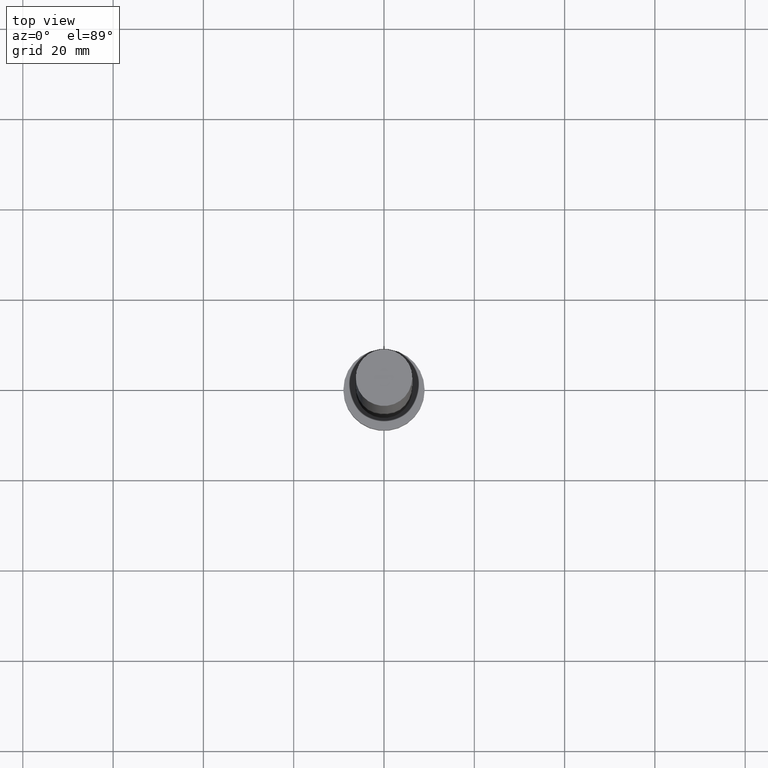
[diagram: clean part render]
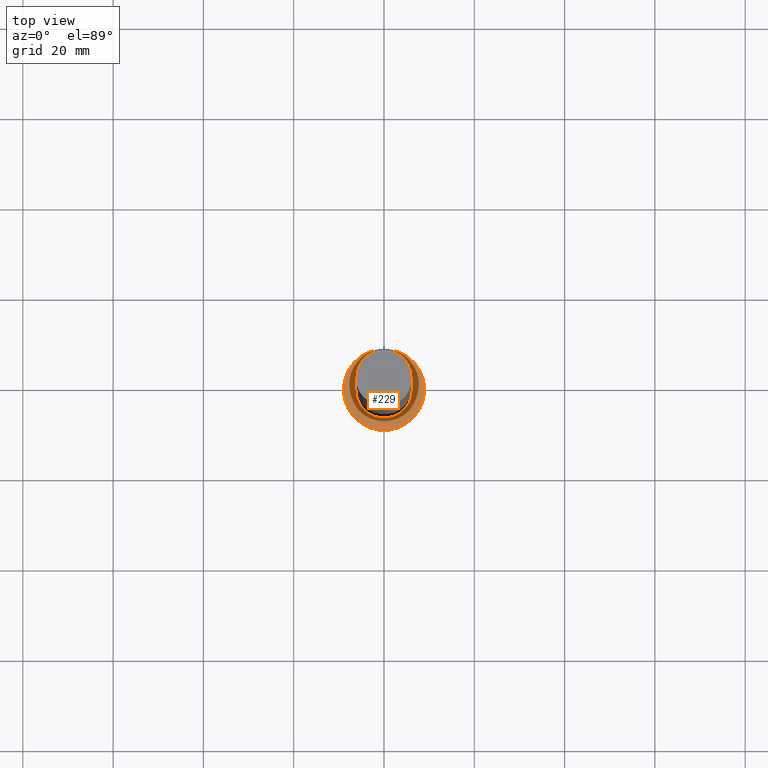
[diagram: same view with one face highlighted and labeled with its STEP entity id]
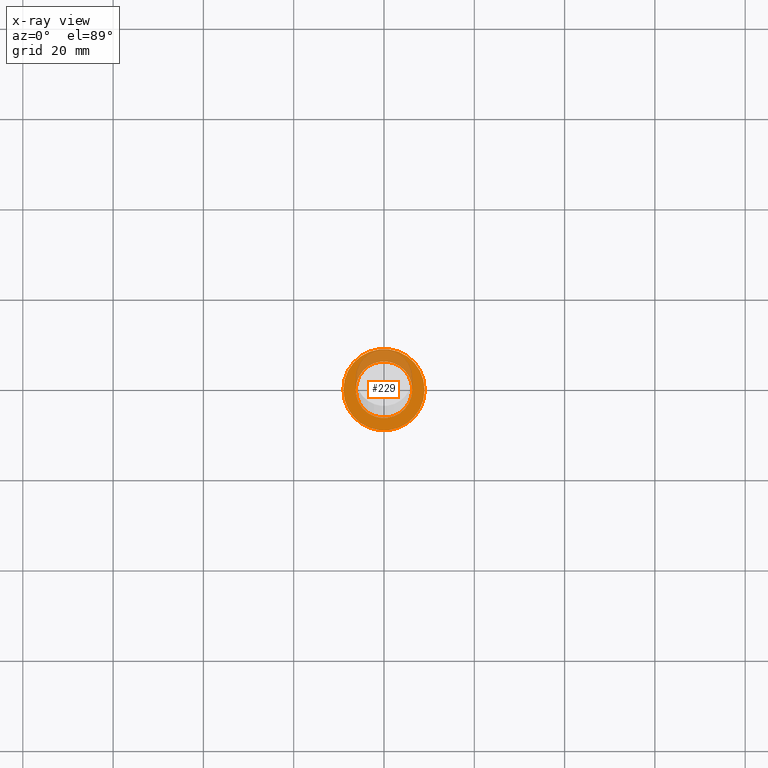
[diagram: x-ray of the same camera — body ghosted, the highlighted face saturated]
A machine part, top view. The second image highlights one B-rep face of the part: STEP entity #229.
The next image is the same camera in x-ray: the body ghosted, the highlighted face saturated — about 26% of this face is hidden behind the body in this view.
In plain terms, the highlighted planar face has unit normal (0, 0, 1).
Its self-contained STEP definition (entity closure, byte-faithful):
#2 = CARTESIAN_POINT ( 'NONE',  ( 0.000000000000000000, 0.000000000000000000, 7.000000000000000000 ) ) ;
#17 = DIRECTION ( 'NONE',  ( 1.000000000000000000, 0.000000000000000000, 0.000000000000000000 ) ) ;
#19 = CARTESIAN_POINT ( 'NONE',  ( 0.000000000000000000, 0.000000000000000000, 7.000000000000000000 ) ) ;
#27 = CIRCLE ( 'NONE', #173, 6.250000000000000000 ) ;
#28 = PLANE ( 'NONE',  #196 ) ;
#31 = CARTESIAN_POINT ( 'NONE',  ( 0.000000000000000000, 0.000000000000000000, 7.000000000000000000 ) ) ;
#48 = DIRECTION ( 'NONE',  ( 0.000000000000000000, 0.000000000000000000, 1.000000000000000000 ) ) ;
#52 = EDGE_CURVE ( 'NONE', #121, #125, #112, .T. ) ;
#58 = DIRECTION ( 'NONE',  ( 1.000000000000000000, 0.000000000000000000, -0.000000000000000000 ) ) ;
#64 = ORIENTED_EDGE ( 'NONE', *, *, #182, .F. ) ;
#67 = ORIENTED_EDGE ( 'NONE', *, *, #79, .F. ) ;
#70 = DIRECTION ( 'NONE',  ( 0.000000000000000000, 0.000000000000000000, 1.000000000000000000 ) ) ;
#72 = DIRECTION ( 'NONE',  ( 1.000000000000000000, 0.000000000000000000, 0.000000000000000000 ) ) ;
#74 = VERTEX_POINT ( 'NONE', #189 ) ;
#79 = EDGE_CURVE ( 'NONE', #74, #195, #223, .T. ) ;
#94 = CARTESIAN_POINT ( 'NONE',  ( -6.250000000000000000, 0.000000000000000000, 7.000000000000000000 ) ) ;
#96 = DIRECTION ( 'NONE',  ( 1.000000000000000000, 0.000000000000000000, 0.000000000000000000 ) ) ;
#98 = DIRECTION ( 'NONE',  ( 0.000000000000000000, 0.000000000000000000, 1.000000000000000000 ) ) ;
#102 = ORIENTED_EDGE ( 'NONE', *, *, #158, .T. ) ;
#107 = EDGE_LOOP ( 'NONE', ( #102, #241 ) ) ;
#109 = CARTESIAN_POINT ( 'NONE',  ( 0.000000000000000000, 0.000000000000000000, 7.000000000000000000 ) ) ;
#111 = DIRECTION ( 'NONE',  ( 0.000000000000000000, 0.000000000000000000, 1.000000000000000000 ) ) ;
#112 = CIRCLE ( 'NONE', #232, 9.000000000000000000 ) ;
#117 = CARTESIAN_POINT ( 'NONE',  ( -9.000000000000000000, 0.000000000000000000, 7.000000000000000000 ) ) ;
#121 = VERTEX_POINT ( 'NONE', #231 ) ;
#125 = VERTEX_POINT ( 'NONE', #117 ) ;
#146 = AXIS2_PLACEMENT_3D ( 'NONE', #2, #98, #72 ) ;
#149 = CIRCLE ( 'NONE', #146, 9.000000000000000000 ) ;
#158 = EDGE_CURVE ( 'NONE', #125, #121, #149, .T. ) ;
#168 = CARTESIAN_POINT ( 'NONE',  ( 0.000000000000000000, 0.000000000000000000, 7.000000000000000000 ) ) ;
#173 = AXIS2_PLACEMENT_3D ( 'NONE', #19, #48, #213 ) ;
#182 = EDGE_CURVE ( 'NONE', #195, #74, #27, .T. ) ;
#185 = EDGE_LOOP ( 'NONE', ( #64, #67 ) ) ;
#189 = CARTESIAN_POINT ( 'NONE',  ( 6.250000000000000000, 7.654042494670957606E-16, 7.000000000000000000 ) ) ;
#195 = VERTEX_POINT ( 'NONE', #94 ) ;
#196 = AXIS2_PLACEMENT_3D ( 'NONE', #109, #70, #58 ) ;
#210 = FACE_OUTER_BOUND ( 'NONE', #107, .T. ) ;
#213 = DIRECTION ( 'NONE',  ( 1.000000000000000000, 0.000000000000000000, 0.000000000000000000 ) ) ;
#223 = CIRCLE ( 'NONE', #249, 6.250000000000000000 ) ;
#229 = ADVANCED_FACE ( 'NONE', ( #239, #210 ), #28, .T. ) ;
#231 = CARTESIAN_POINT ( 'NONE',  ( 9.000000000000000000, 1.102182119232617714E-15, 7.000000000000000000 ) ) ;
#232 = AXIS2_PLACEMENT_3D ( 'NONE', #31, #111, #17 ) ;
#234 = DIRECTION ( 'NONE',  ( 0.000000000000000000, 0.000000000000000000, 1.000000000000000000 ) ) ;
#239 = FACE_BOUND ( 'NONE', #185, .T. ) ;
#241 = ORIENTED_EDGE ( 'NONE', *, *, #52, .T. ) ;
#249 = AXIS2_PLACEMENT_3D ( 'NONE', #168, #234, #96 ) ;